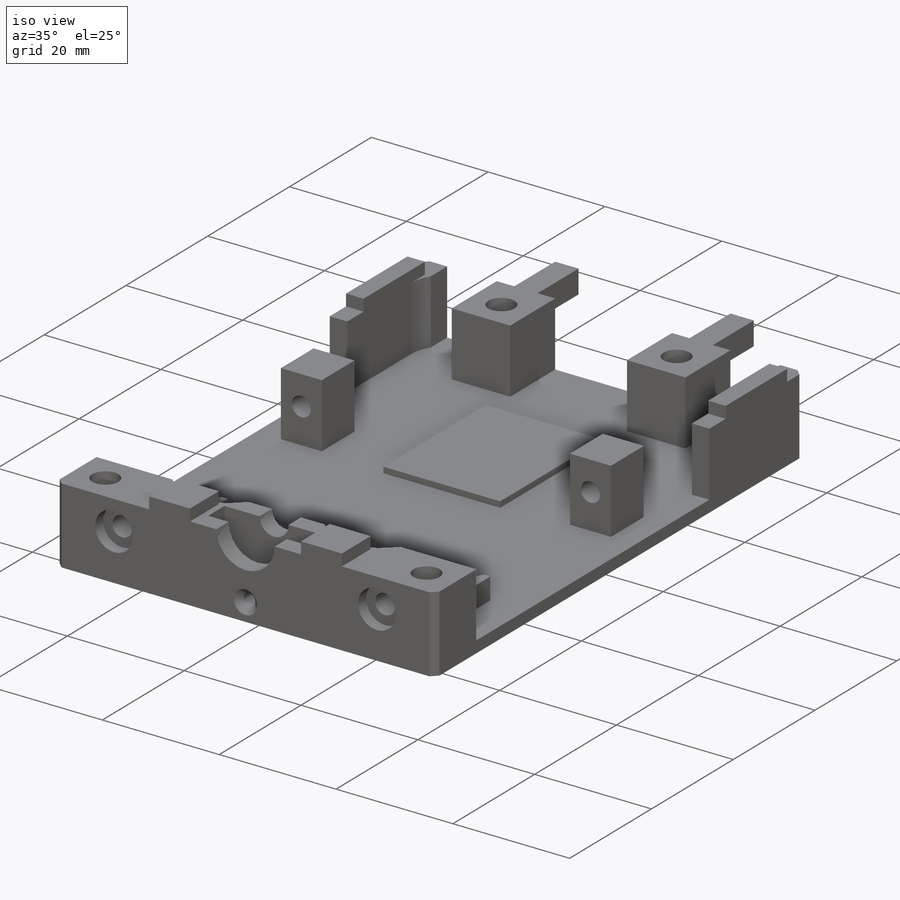
[diagram: iso view]
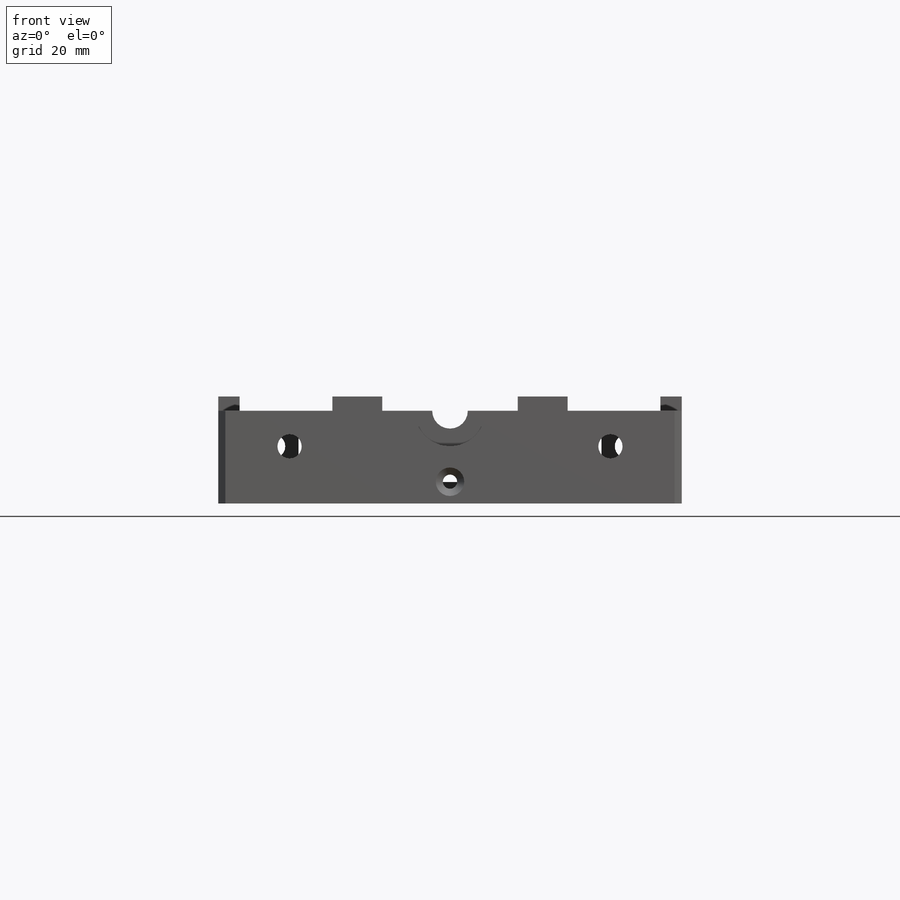
[diagram: front view]
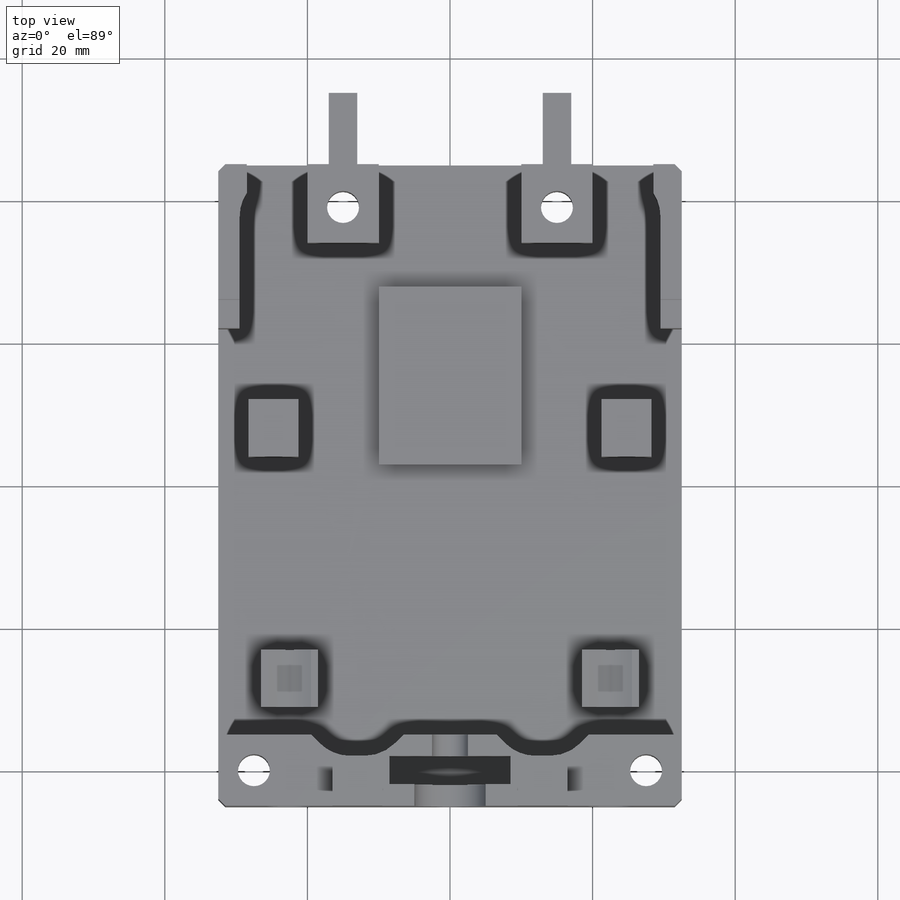
[diagram: top view]
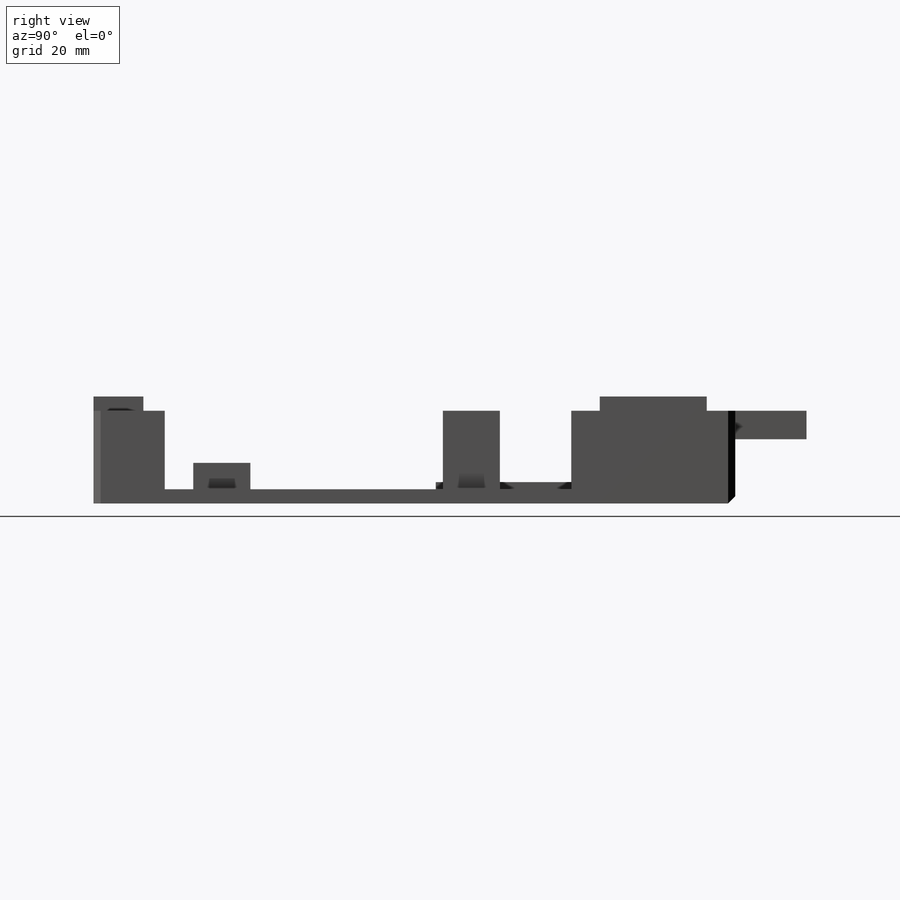
[diagram: right view]
SOLIDWORKS PART (.sldprt)
format: sldprt  version: not decoded by parser v0  size: 1,334,784 bytes
history: native  units: mm
features: sketch x16, extrude x6, cut_extrude x4, hole x3, chamfer x3, thread x2, material x1, fillet x1 (+15 scaffold rows collapsed)
feature tree (51):
  scaffold x15  (default folders/planes/origin — collapsed)
  material  "HDPE 500"
  sketch  "Sketch1"  dims[D1=65.0mm D2=90.0mm]
  extrude  "Extrude1"  Depth=2mm
  sketch  "Sketch2"  dims[c1.D1=19.0mm c1.D2=20.0mm c1.D3=20.0mm c2.D2=4.0mm c2.D3=10.0mm c2.D4=4.0mm c3.D2=25.0mm c3.D4=7.5mm c3.D5=5.0mm c3.D6=4.0mm c3.D7=3.0mm c3.D8=21.0mm c3.D9=10.0mm c3.D10=11.0mm c3.D11=10.0mm c3.D12=11.0mm c3.D13=7.75mm c3.D14=7.0mm c3.D15=8.0mm c3.D16=49.0mm c3.D17=6.0mm c3.D18=14.5mm c3.D19=4.0mm c3.D20=3.0mm c3.D21=10.0mm c3.D22=16.0mm c4.D8=20.0mm c4.D18=3.0mm c4.D23=8.0mm c4.D24=4.0mm c4.D25=8.0mm c4.D26=3.0mm c4.D27=4.0mm c4.D4=20.0mm c4.D5=4.0mm c4.D6=4.0mm c4.D7=4.0mm c5.D8=4.0mm]
  extrude  "Extrude2"  Depth=11mm
  sketch  "Sketch3"  dims[D1=5.0mm]
  cut_extrude  "Cut-Extrude1"  Depth=10mm
  sketch  "Sketch4"  dims[D1=3.0mm D2=4.0mm D3=17.0mm]
  cut_extrude  "Cut-Extrude2"  Depth=8.5mm
  hole  "M4x0.7 Tapped Hole1"  Diameter=3.3mm Depth=10.1mm
  sketch  "3DSketch1"  dims[D1=5.0mm D2=5.0mm]
  sketch  "Sketch8"  dims[hole-wizard template sketch: 50 standard entries collapsed; hole parameters above]
  thread  "Hole Thread1"  Diameter=8mm  [1 undecoded]
  thread  "Hole Thread2"  Diameter=8mm  [1 undecoded]
  sketch  "Sketch9"  dims[D1=4.0mm D2=4.0mm D3=4.0mm D4=4.0mm]
  extrude  "Extrude3"  Depth=10mm
  sketch  "Sketch10"  dims[c1.D1=3.0mm c1.D2=8.0mm c1.D3=8.0mm c1.D4=3.0mm c1.D5=8.0mm c1.D6=4.0mm c1.D7=8.0mm c1.D8=4.0mm c2.D5=7.0mm]
  extrude  "Extrude4"  Depth=13mm
  chamfer  "Chamfer1"  Distance=1mm Angle=45deg
  chamfer  "Chamfer2"  Distance=3mm Angle=45deg
  fillet  "Fillet7"  Radius=6mm
  hole  "CBORE for M4 Cheese Head Screw1"  Diameter=4.5mm Depth=15mm
  sketch  "3DSketch3"  dims[c1.D1=5.0mm c1.D2=5.0mm c1.D3=5.0mm c1.D4=5.0mm c1.D5=~3.87277mm c1.D9=6.0mm c1.D6=~4.481444mm c2.D5=6.0mm c2.D7=~6.649933mm c3.D5=5.0mm c3.D8=~2.883093mm c4.D5=5.0mm c5.D5=~5.300467mm c5.D9=5.0mm c5.D6=~5.060712mm c6.D5=5.0mm c6.D7=~5.441708mm c7.D5=6.0mm c7.D8=~6.320483mm c8.D5=6.0mm c9.D5=~7.054974mm c9.D6=6.0mm c10.D6=~6.39443mm c10.D7=6.0mm c10.D5=5.0mm c11.D6=5.0mm c11.D7=17.5mm c11.D8=17.5mm]
  sketch  "Sketch13"  dims[hole-wizard template sketch: 42 standard entries collapsed; hole parameters kept: c12.Thru Hole Depth=15.0mm c12.C'Bore Dia.=8.0mm c12.C'Bore Depth=2.6mm]
  hole  "CBORE for M3 Cheese Head Screw2"  Diameter=3.4mm Depth=20mm
  sketch  "3DSketch4"  dims[D1=5.0mm D2=5.0mm D3=9.0mm D4=9.0mm]
  sketch  "Sketch14"  dims[hole-wizard template sketch: 28 standard entries collapsed; hole parameters kept: c8.Hole Dia.=3.4mm c8.Hole Depth=20.0mm c8.C'Bore Dia.=6.5mm c8.C'Bore Depth=2.0mm c8.D5=~14.816244mm c8.Drill Angle=118.0deg]
  sketch  "Sketch15"  dims[D1=2.0mm D2=1.05mm]
  cut_extrude  "Cut-Extrude3"  Depth=10mm
  chamfer  "Chamfer3"  Distance=1mm Angle=45deg
  sketch  "Sketch16"  dims[D1=10.0mm]
  cut_extrude  "Cut-Extrude4"  Depth=4mm
  sketch  "Sketch18"  dims[D1=25.0mm D2=20.0mm D3=6.0mm]
  extrude  "Extrude5"  Depth=1mm
  sketch  "Sketch19"  dims[D7=6.0mm D1=3.7mm D2=3.7mm D3=1.0mm D4=1.0mm D5=8.0mm D6=6.0mm]
  extrude  "Extrude6"  Depth=8mm
decode coverage: 35 of 35 modeling features carry decoded parameters
note: ~ marks probable driven/reference dimensions
note: 2 parameter values undecoded
note: suppression state not decoded; provenance and decode notes live in map.json
